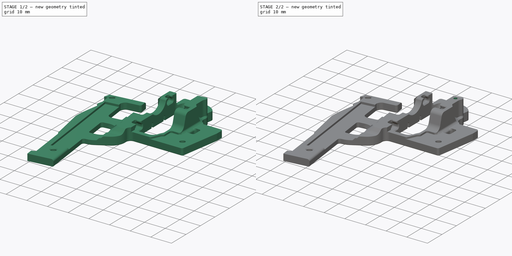
[diagram: build sequence overview — one tinted view per stage of 2, left to right]
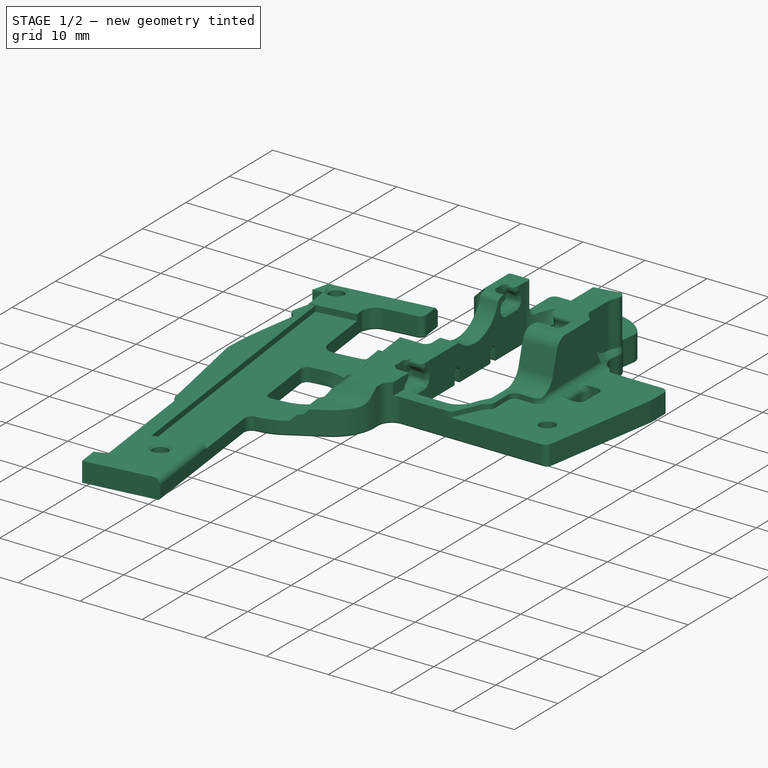
[diagram: stage 1 of 2 — iso view after this stage's code; geometry added in this stage tinted green]
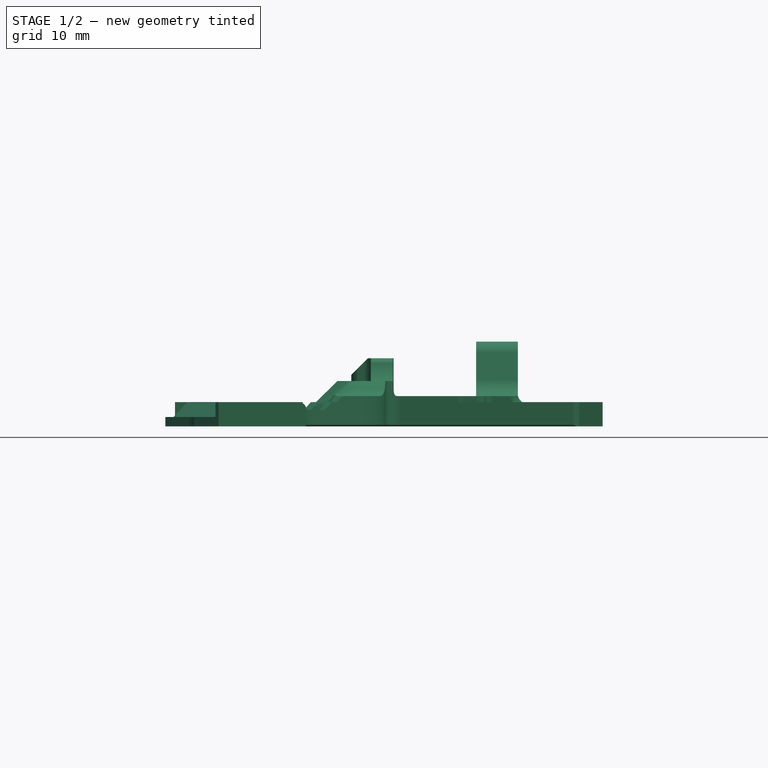
[diagram: stage 1 of 2 — front view after this stage's code; geometry added in this stage tinted green]
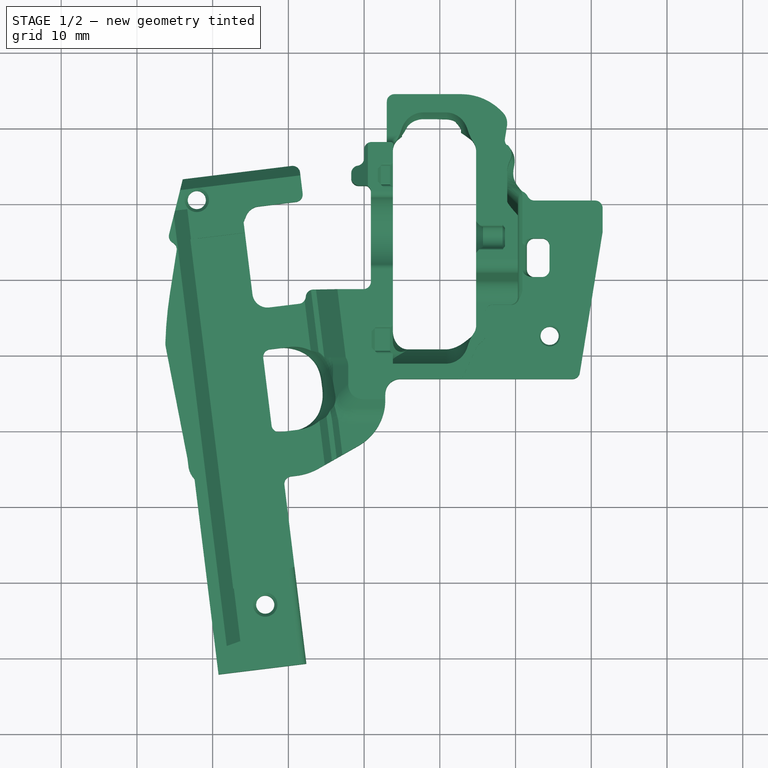
[diagram: stage 1 of 2 — top view after this stage's code; geometry added in this stage tinted green]
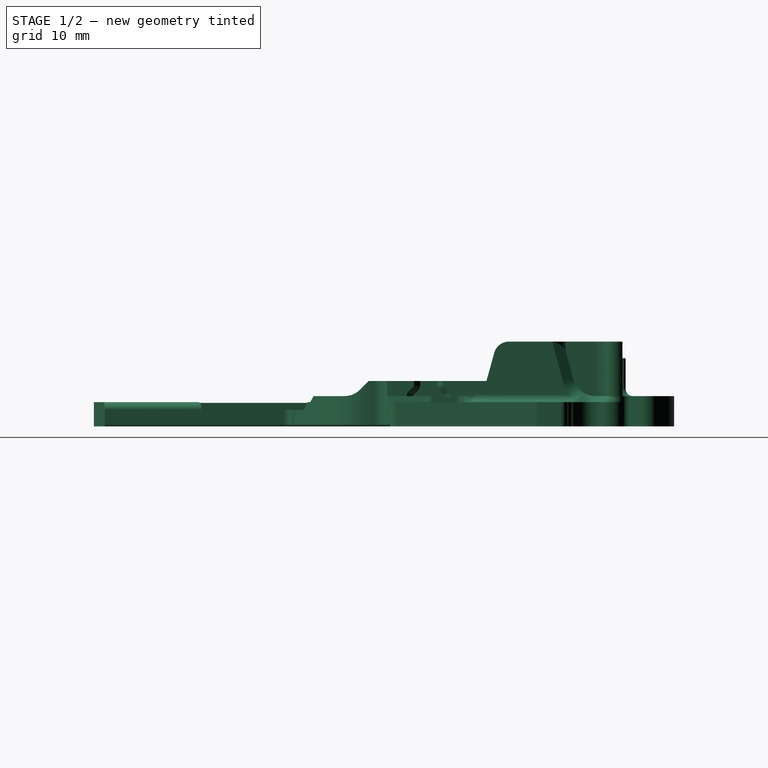
[diagram: stage 1 of 2 — right view after this stage's code; geometry added in this stage tinted green]
FCSTD DOCUMENT  (FreeCAD 0.20R29177 +233 (Git))
Label: mouse_cage_with_scroll_clicker_mount
License: All rights reserved
LicenseURL: http://en.wikipedia.org/wiki/All_rights_reserved
objects: Part::Feature×9, Sketcher::SketchObject×2, PartDesign::Pocket×2, App::Part×2, PartDesign::FeatureBase×1, PartDesign::Pad×1, PartDesign::Body×1
note: 19 computed .brp shape members not serialized (recipe doc carries the construction recipe); baked Part::Feature solids carry a one-line shape summary decoded from their .brp

FEATURE [Part::Feature] Part__Feature  label="Scroll Wheel^QMM - QMK Mouse - STEP Export"
  Placement = pos=(-0.612653,9.21221,12.7494) rot=(1,0,0;3.14159rad)
  shape: bbox 8.3 x 31.68 x 31.68 mm, 180 faces (baked)
FEATURE [Part::Feature] Part__Feature001  label="Scroll Wheel Spring^QMM - QMK Mouse - STEP Export"
  Placement = pos=(4.23735,-26.2878,-5.75063) rot=(0,0,1;0rad)
  shape: bbox 12.4 x 39.91 x 13.07 mm, 326 faces (baked)
FEATURE [Part::Feature] Part__Feature002  label="MouseBody"
  Placement = pos=(4.23735,-26.2878,-5.75063) rot=(0,0,1;0rad)
  shape: bbox 57.75 x 76.62 x 18.25 mm, 538 faces (baked)
FEATURE [Part::Feature] Part__Feature003  label="MouseBody001"
  Placement = pos=(4.23735,-26.2878,-5.75063) rot=(0,0,1;0rad)
  shape: bbox 159.7 x 133.2 x 51.81 mm, 641 faces (baked)
FEATURE [Part::Feature] Part__Feature004  label="MouseBody002"
  Placement = pos=(4.23735,-26.2878,-5.75063) rot=(0,0,1;0rad)
  shape: bbox 74.01 x 96.8 x 112.2 mm, 636 faces (baked)
FEATURE [Part::Feature] Part__Feature005  label="MouseBody003"
  Placement = pos=(4.23735,-26.2878,-5.75063) rot=(0,0,1;0rad)
  shape: bbox 107 x 62.73 x 26.13 mm, 132 faces (baked)
FEATURE [Part::Feature] Part__Feature006  label="MouseBody004"
  Placement = pos=(4.23735,-26.2878,-5.75063) rot=(0,0,1;0rad)
  shape: bbox 105.8 x 141 x 136.9 mm, 360 faces (baked)
FEATURE [Part::Feature] Part__Feature007  label="LeftButtons^QMM - QMK Mouse - STEP Export"
  Placement = pos=(4.23735,-26.2878,-5.75063) rot=(0,0,1;0rad)
  shape: bbox 20.05 x 24.29 x 15.68 mm, 118 faces (baked)
FEATURE [Part::Feature] Part__Feature008  label="RightButtons"
  Placement = pos=(8.87842,-12.6308,-24.2563) rot=(0,0,1;0rad)
  shape: bbox 36.28 x 51.71 x 14.86 mm, 171 faces (baked)
FEATURE [PartDesign::FeatureBase] BaseFeature
  BaseFeature = -> Part__Feature002
FEATURE [Sketcher::SketchObject] Sketch
  ExternalGeometry = -> [BaseFeature]
  FullyConstrained = false
  MapMode = 5
  Placement = pos=(0,1.174e-13,19.7) rot=(0,0,1;0rad)
  Support = -> [BaseFeature]
  sketch-geometry (24):
    g0: LineSegment StartX=10.3 StartY=38.3153 StartZ=0 EndX=4.8 EndY=38.3153 EndZ=0
    g1: LineSegment StartX=10.3 StartY=38.3153 StartZ=0 EndX=10.3 EndY=38.3848 EndZ=0
    g2: Circle CenterX=8.9 CenterY=40.2429 CenterZ=0 NormalX=0 NormalY=0 NormalZ=1 AngleXU=0 Radius=1
    g3: Circle CenterX=8.89978 CenterY=39.9269 CenterZ=0 NormalX=0 NormalY=0 NormalZ=1 AngleXU=0 Radius=1
    g4: Circle CenterX=10.3 CenterY=38.3848 CenterZ=0 NormalX=0 NormalY=0 NormalZ=1 AngleXU=0 Radius=1
    g5: BSplineCurve PolesCount=3 KnotsCount=2 Degree=2 IsPeriodic=0
    g6: GeomPoint X=8.9 Y=40.2429 Z=0
    g7: GeomPoint X=10.3 Y=38.3848 Z=0
    g8: LineSegment StartX=8.9 StartY=40.2429 StartZ=0 EndX=8.9 EndY=44.1118 EndZ=0
    g9: LineSegment StartX=4.8 StartY=38.3153 StartZ=0 EndX=4.8 EndY=47 EndZ=0
    g10: Circle CenterX=8.9 CenterY=44.1118 CenterZ=0 NormalX=0 NormalY=0 NormalZ=1 AngleXU=0 Radius=1
    g11: Circle CenterX=8.89658 CenterY=44.8678 CenterZ=0 NormalX=0 NormalY=0 NormalZ=1 AngleXU=0 Radius=1
    g12: Circle CenterX=9.28558 CenterY=45.681 CenterZ=0 NormalX=0 NormalY=0 NormalZ=1 AngleXU=0 Radius=1
    g13: BSplineCurve PolesCount=3 KnotsCount=2 Degree=2 IsPeriodic=0
    g14: GeomPoint X=8.9 Y=44.1118 Z=0
    g15: GeomPoint X=9.28558 Y=45.681 Z=0
    g16: LineSegment StartX=9.28558 StartY=45.681 StartZ=0 EndX=9.33174 EndY=45.7782 EndZ=0
    g17: Circle CenterX=9.33174 CenterY=45.7782 CenterZ=0 NormalX=0 NormalY=0 NormalZ=1 AngleXU=0 Radius=1
    g18: Circle CenterX=9.78134 CenterY=46.8268 CenterZ=0 NormalX=0 NormalY=0 NormalZ=1 AngleXU=0 Radius=1
    g19: Circle CenterX=8.95409 CenterY=47.6742 CenterZ=0 NormalX=0 NormalY=0 NormalZ=1 AngleXU=0 Radius=1
    g20: BSplineCurve PolesCount=3 KnotsCount=2 Degree=2 IsPeriodic=0
    g21: GeomPoint X=9.33174 Y=45.7782 Z=0
    g22: GeomPoint X=8.95409 Y=47.6742 Z=0
    g23: LineSegment StartX=4.8 StartY=47 StartZ=0 EndX=8.95409 EndY=47.6742 EndZ=0
  constraints (42):
    c: Coincident(g0,g-12)
    c: Coincident(g0,g-5)
    c: Coincident(g1,g0)
    c: Coincident(g1,g-11)
    c: Weight(g2) = 1
    c: Coincident(g5,g-11)
    c: Equal(g2,g3)
    c: Equal(g2,g4)
    c: Coincident(g5,g1)
    c: InternalAlignment(g2,g5)
    c: InternalAlignment(g3,g5)
    c: InternalAlignment(g4,g5)
    c: InternalAlignment(g6,g5)
    c: InternalAlignment(g7,g5)
    c: Coincident(g8,g5)
    c: Coincident(g8,g-7)
    c: Coincident(g9,g0)
    c: Coincident(g9,g-18)
    c: Weight(g10) = 1
    c: Coincident(g13,g8)
    c: Equal(g10,g11)
    c: Equal(g10,g12)
    c: Coincident(g13,g-17)
    c: InternalAlignment(g10,g13)
    c: InternalAlignment(g11,g13)
    c: InternalAlignment(g12,g13)
    c: InternalAlignment(g14,g13)
    c: InternalAlignment(g15,g13)
    c: Coincident(g16,g13)
    c: Weight(g17) = 1
    c: Coincident(g20,g16)
    c: Equal(g17,g18)
    c: Equal(g17,g19)
    c: InternalAlignment(g17,g20)
    c: InternalAlignment(g18,g20)
    c: InternalAlignment(g19,g20)
    c: InternalAlignment(g21,g20)
    c: InternalAlignment(g22,g20)
    c: Coincident(g20,g-21)
    c: Coincident(g16,g-17)
    c: Coincident(g23,g9)
    c: Coincident(g23,g20)
FEATURE [PartDesign::Pad] Pad
  BaseFeature = -> BaseFeature
  Direction = (0,6e-15,1)
  Length = 5
  Length2 = 10
  Profile = -> Sketch
  ReferenceAxis = -> Sketch [N_Axis]
  Reversed = true
  Type = 3
  UpToFace = -> BaseFeature [Face458]
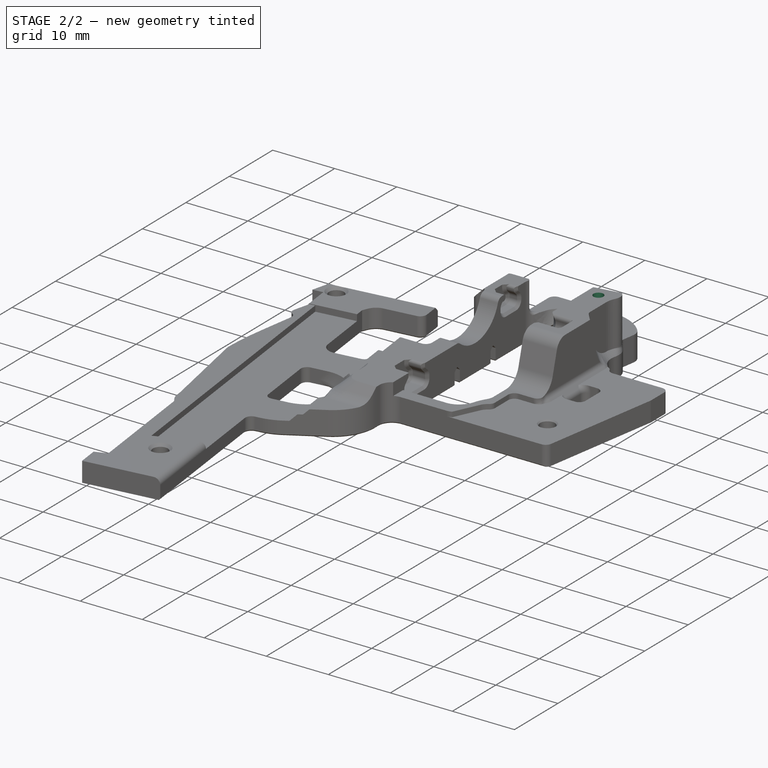
[diagram: stage 2 of 2 — iso view after this stage's code; geometry added in this stage tinted green]
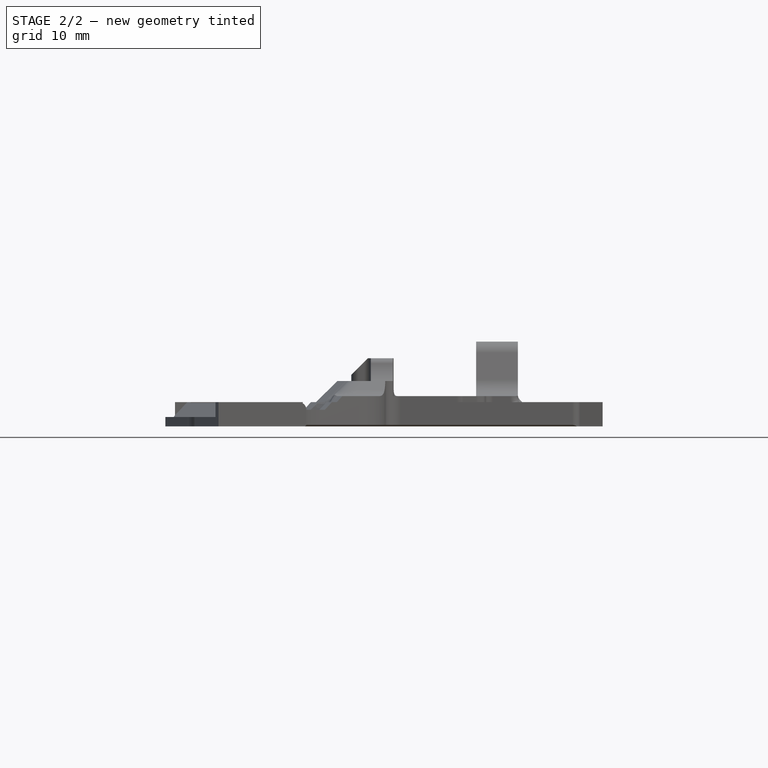
[diagram: stage 2 of 2 — front view after this stage's code; geometry added in this stage tinted green]
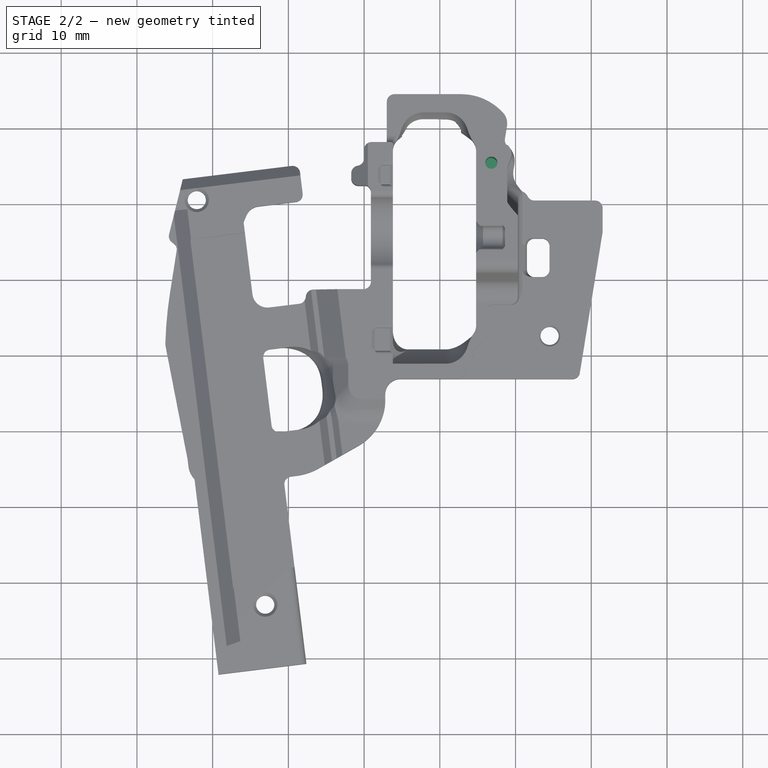
[diagram: stage 2 of 2 — top view after this stage's code; geometry added in this stage tinted green]
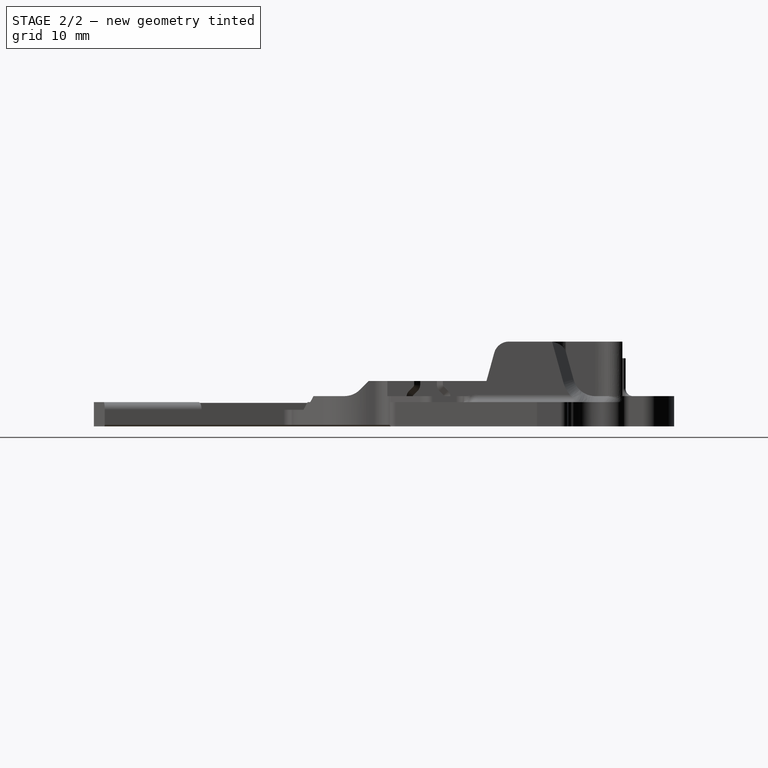
[diagram: stage 2 of 2 — right view after this stage's code; geometry added in this stage tinted green]
FEATURE [Sketcher::SketchObject] Sketch001
  ExternalGeometry = -> [Pad]
  FullyConstrained = true
  MapMode = 5
  Placement = pos=(-2.1e-15,1.206e-13,19.7) rot=(0,0,1;0rad)
  Support = -> [Pad]
  sketch-geometry (3):
    g0: Circle CenterX=6.8 CenterY=45.3246 CenterZ=0 NormalX=0 NormalY=0 NormalZ=1 AngleXU=0 Radius=0.8
    g1: LineSegment StartX=4.8 StartY=45.3246 StartZ=0 EndX=6.8 EndY=45.3246 EndZ=0
    g2: LineSegment StartX=6.8 StartY=45.3246 StartZ=0 EndX=6.8 EndY=47.3246 EndZ=0
  constraints (10):
    c: Diameter(g0) = 1.6
    c: Coincident(g1,g0)
    c: PointOnObject(g1,g-3)
    c: Horizontal(g1)
    c: Coincident(g2,g0)
    c: PointOnObject(g2,g-4)
    c: Vertical(g2)
    c: Equal(g1,g2)
    c: Angle(g-3,g-4) = 1.73169
    c: DistanceY(g2,g2) = 2
FEATURE [PartDesign::Pocket] Pocket
  BaseFeature = -> Pad
  Direction = (1e-16,-6.1e-15,-1)
  Length = 10
  Length2 = 5
  Profile = -> Sketch001
  ReferenceAxis = -> Sketch001 [N_Axis]
  Type = 0
FEATURE [PartDesign::Pocket] Pocket001
  BaseFeature = -> Pocket
  Direction = (0,0,-1)
  Length = 1
  Length2 = 5
  Profile = -> Pocket [Face350]
  Type = 0
FEATURE [PartDesign::Body] Body
  BaseFeature = -> Part__Feature002
  Group = -> [BaseFeature,Sketch,Pad,Sketch001,Pocket,Pocket001]
  Origin = -> Origin002
  Tip = -> Pocket001
FEATURE [App::Part] MouseBody  label="MouseBody005"
  Group = -> [Part__Feature003,Part__Feature004,Part__Feature005,Part__Feature006,Part__Feature002,Body]
  Origin = -> Origin
FEATURE [App::Part] PloopyMouse
  Group = -> [Part__Feature,Part__Feature001,MouseBody,Part__Feature007,Part__Feature008]
  Origin = -> Origin001
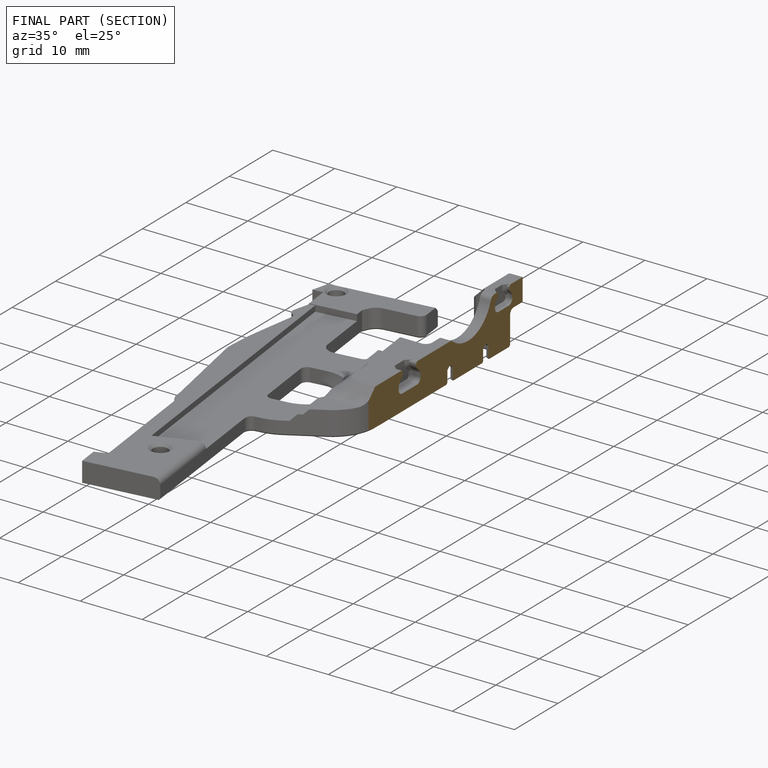
[diagram: finished part — half-section view (interior)]
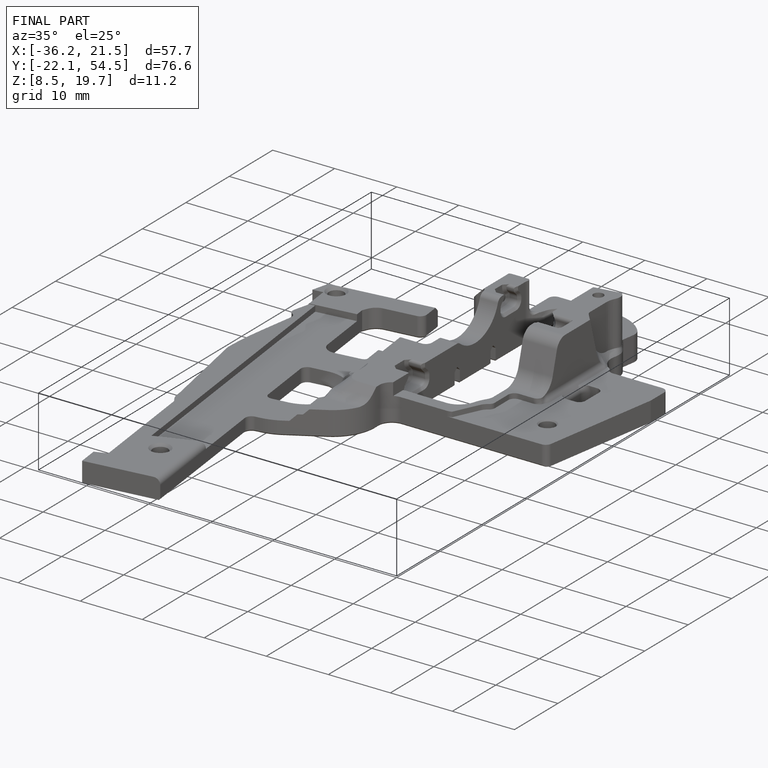
[diagram: finished part — iso view with bounding-box wireframe]
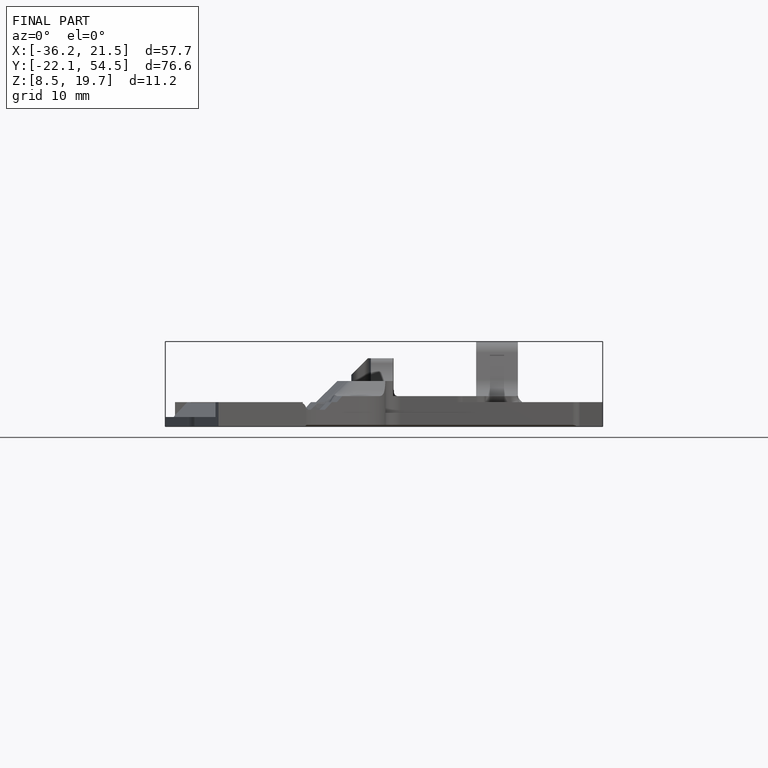
[diagram: finished part — front view with bounding-box wireframe]
